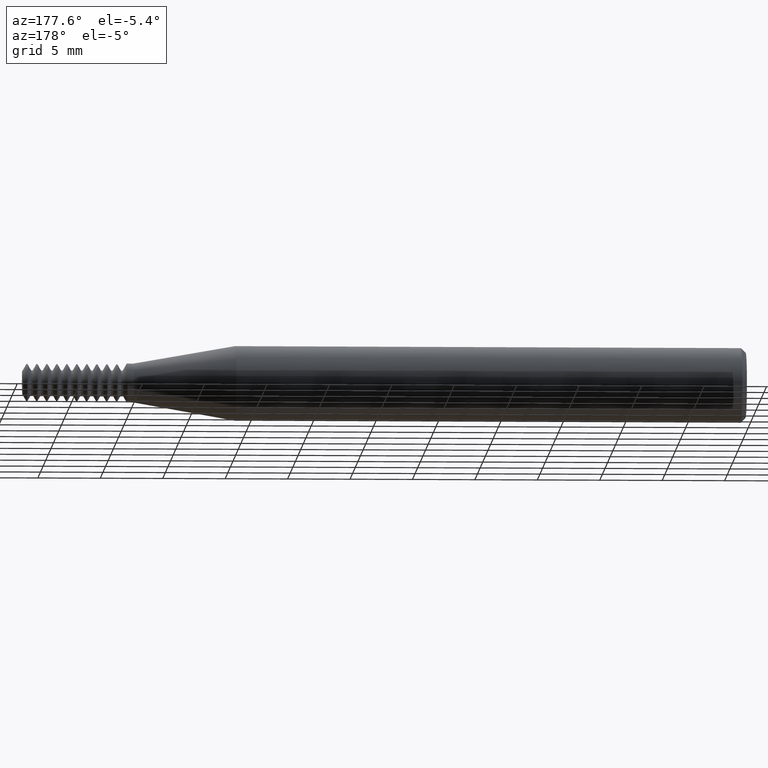
[diagram: clean part render]
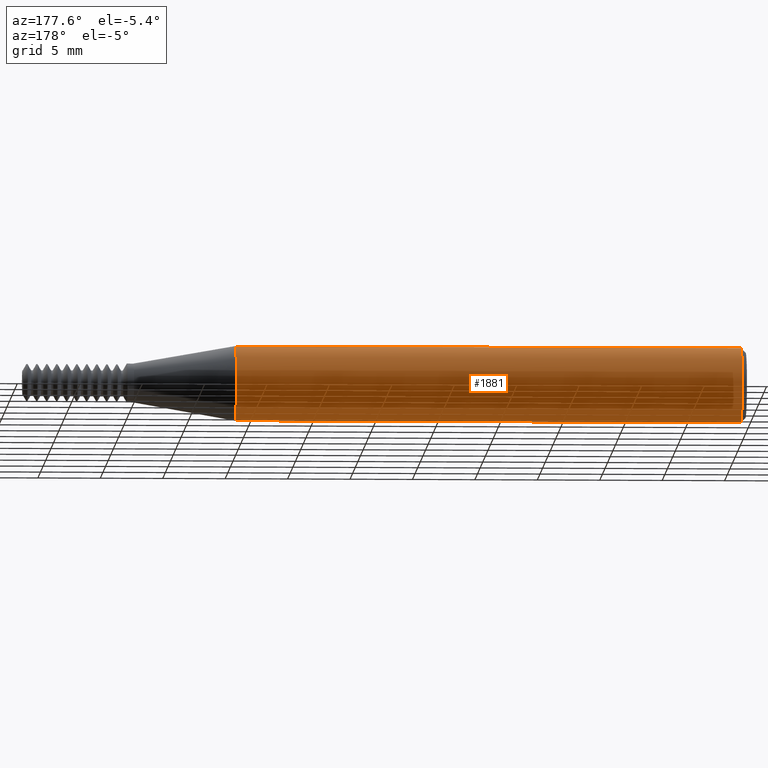
[diagram: same view with one face highlighted and labeled with its STEP entity id]
A machine part, auxiliary view. The second image highlights one B-rep face of the part: STEP entity #1881.
In plain terms, the highlighted cylindrical surface (partial cylindrical patch) has radius 2.9972 mm, axis along (1, -0, -0).
Its self-contained STEP definition (entity closure, byte-faithful):
#37 = CIRCLE ( 'NONE', #1847, 0.1179999999999999938 ) ;
#63 = AXIS2_PLACEMENT_3D ( 'NONE', #692, #875, #345 ) ;
#193 = CARTESIAN_POINT ( 'NONE',  ( 0.01500000000000052333, 1.445083222993876666E-17, 0.1179999999999999938 ) ) ;
#237 = LINE ( 'NONE', #514, #983 ) ;
#345 = DIRECTION ( 'NONE',  ( 0.0000000000000000000, 0.0000000000000000000, -1.000000000000000000 ) ) ;
#382 = DIRECTION ( 'NONE',  ( 0.0000000000000000000, 0.0000000000000000000, 1.000000000000000000 ) ) ;
#390 = CARTESIAN_POINT ( 'NONE',  ( 0.01500000000000052333, 0.0000000000000000000, 0.0000000000000000000 ) ) ;
#472 = FACE_OUTER_BOUND ( 'NONE', #1557, .T. ) ;
#484 = CARTESIAN_POINT ( 'NONE',  ( 0.01500000000000052333, 0.0000000000000000000, -0.1179999999999999938 ) ) ;
#514 = CARTESIAN_POINT ( 'NONE',  ( 2.279999999999999805, 0.0000000000000000000, -0.1179999999999999938 ) ) ;
#692 = CARTESIAN_POINT ( 'NONE',  ( 2.279999999999999805, 0.0000000000000000000, 0.0000000000000000000 ) ) ;
#875 = DIRECTION ( 'NONE',  ( 1.000000000000000000, -0.0000000000000000000, -0.0000000000000000000 ) ) ;
#983 = VECTOR ( 'NONE', #1991, 39.37007874015748143 ) ;
#1001 = EDGE_CURVE ( 'NONE', #1102, #1608, #1787, .T. ) ;
#1075 = AXIS2_PLACEMENT_3D ( 'NONE', #1887, #1675, #1320 ) ;
#1078 = VECTOR ( 'NONE', #2031, 39.37007874015748143 ) ;
#1096 = DIRECTION ( 'NONE',  ( 1.000000000000000000, -0.0000000000000000000, -0.0000000000000000000 ) ) ;
#1102 = VERTEX_POINT ( 'NONE', #2270 ) ;
#1320 = DIRECTION ( 'NONE',  ( 0.0000000000000000000, 0.0000000000000000000, -1.000000000000000000 ) ) ;
#1326 = ORIENTED_EDGE ( 'NONE', *, *, #1984, .F. ) ;
#1388 = EDGE_CURVE ( 'NONE', #2049, #1608, #1863, .T. ) ;
#1389 = ORIENTED_EDGE ( 'NONE', *, *, #1001, .F. ) ;
#1557 = EDGE_LOOP ( 'NONE', ( #1772, #2374, #1389, #1326 ) ) ;
#1594 = CYLINDRICAL_SURFACE ( 'NONE', #63, 0.1179999999999999938 ) ;
#1608 = VERTEX_POINT ( 'NONE', #2075 ) ;
#1675 = DIRECTION ( 'NONE',  ( 1.000000000000000000, -0.0000000000000000000, -0.0000000000000000000 ) ) ;
#1772 = ORIENTED_EDGE ( 'NONE', *, *, #2125, .T. ) ;
#1787 = CIRCLE ( 'NONE', #1075, 0.1179999999999999938 ) ;
#1847 = AXIS2_PLACEMENT_3D ( 'NONE', #390, #1096, #382 ) ;
#1860 = VERTEX_POINT ( 'NONE', #484 ) ;
#1863 = LINE ( 'NONE', #2039, #1078 ) ;
#1881 = ADVANCED_FACE ( 'NONE', ( #472 ), #1594, .T. ) ;
#1887 = CARTESIAN_POINT ( 'NONE',  ( 1.609999999999999432, 0.0000000000000000000, 0.0000000000000000000 ) ) ;
#1984 = EDGE_CURVE ( 'NONE', #1860, #1102, #237, .T. ) ;
#1991 = DIRECTION ( 'NONE',  ( 1.000000000000000000, -0.0000000000000000000, -0.0000000000000000000 ) ) ;
#2031 = DIRECTION ( 'NONE',  ( 1.000000000000000000, -0.0000000000000000000, -0.0000000000000000000 ) ) ;
#2039 = CARTESIAN_POINT ( 'NONE',  ( 2.279999999999999805, 1.445083222993876666E-17, 0.1179999999999999938 ) ) ;
#2049 = VERTEX_POINT ( 'NONE', #193 ) ;
#2075 = CARTESIAN_POINT ( 'NONE',  ( 1.609999999999999432, 1.445083222993876666E-17, 0.1179999999999999938 ) ) ;
#2125 = EDGE_CURVE ( 'NONE', #1860, #2049, #37, .T. ) ;
#2270 = CARTESIAN_POINT ( 'NONE',  ( 1.609999999999999432, 0.0000000000000000000, -0.1179999999999999938 ) ) ;
#2374 = ORIENTED_EDGE ( 'NONE', *, *, #1388, .T. ) ;